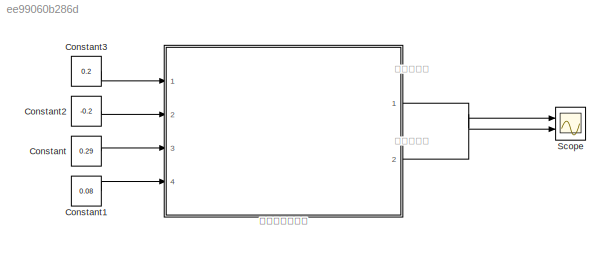
MODEL slx_ee99060b286d
KIND model
CONFIG AbsTol = auto
CONFIG EnableMultiTasking = off
CONFIG FixedStep = auto
CONFIG MaxStep = auto
CONFIG MinStep = auto
CONFIG RelTol = 1e-3
CONFIG SampleTimeConstraint = Unconstrained
CONFIG SolverName = VariableStepAuto
CONFIG StartTime = 0.0
CONFIG StopTime = 10.0
BLOCK [Constant] Constant
  Value = 0.29
BLOCK [Constant] Constant1
  Value = 0.08
BLOCK [Constant] Constant2
  Value = -0.2
BLOCK [Constant] Constant3
  Value = 0.2
BLOCK [Scope] Scope
  Floating = off
  NumInputPorts = 2
  Ports = [2]
  ScopeSpecificationString = Simulink.scopes.TimeScopeBlockCfg('CurrentConfiguration', extmgr.ConfigurationSet(extmgr.Configuration('Core','General UI',true),extmgr.Configuration('Core','Source UI',true),extmgr.Configuration('Sources','WiredSimulink',true,'DataLoggingVariableName','ScopeData1'),extmgr.Configuration('Visuals','Time Domain',true,'SerializedDisplays',{struct('MinYLimReal','1.59375','MaxYLimReal','3.40625','YLabe...<+1484ch>
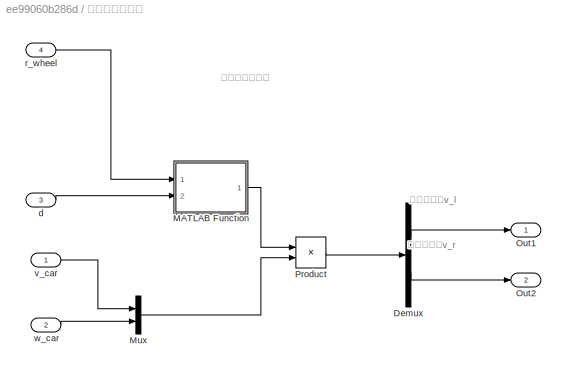
BLOCK [SubSystem] 差分轮运动模型
  Ports = [4, 2]
  RequestExecContextInheritance = off
BLOCK [Demux] 差分轮运动模型/Demux
  Outputs = 2
  Ports = [1, 2]
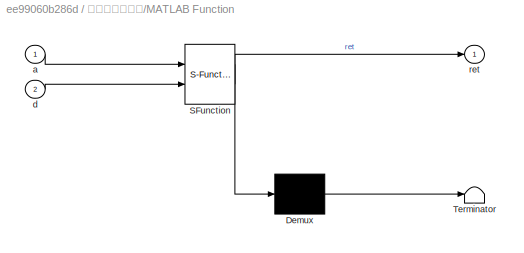
BLOCK [SubSystem] 差分轮运动模型/MATLAB Function
  ErrorFcn = Stateflow.Translate.translate
  PermitHierarchicalResolution = ExplicitOnly
  Ports = [2, 1]
  RequestExecContextInheritance = off
  SFBlockType = MATLAB Function
  TreatAsAtomicUnit = on
BLOCK [Demux] 差分轮运动模型/MATLAB Function/ Demux 
  Outputs = 1
  Ports = [1, 1]
BLOCK [S-Function] 差分轮运动模型/MATLAB Function/ SFunction 
  EnableBusSupport = on
  FunctionName = sf_sfun
  PortCounts = [2 2]
  Ports = [2, 2]
  SFcnIsStateOwnerBlock = off
  SFunctionDeploymentMode = off
  Tag = Stateflow S-Function 2
BLOCK [Terminator] 差分轮运动模型/MATLAB Function/ Terminator 
BLOCK [Inport] 差分轮运动模型/MATLAB Function/a
BLOCK [Inport] 差分轮运动模型/MATLAB Function/d
  Port = 2
BLOCK [Outport] 差分轮运动模型/MATLAB Function/ret
BLOCK [Mux] 差分轮运动模型/Mux
  DisplayOption = bar
  Inputs = 2
  Ports = [2, 1]
BLOCK [Outport] 差分轮运动模型/Out1
BLOCK [Outport] 差分轮运动模型/Out2
  Port = 2
BLOCK [Product] 差分轮运动模型/Product
  Multiplication = Matrix(*)
  Ports = [2, 1]
BLOCK [Inport] 差分轮运动模型/d
  Port = 3
BLOCK [Inport] 差分轮运动模型/r_wheel
  Port = 4
BLOCK [Inport] 差分轮运动模型/v_car
BLOCK [Inport] 差分轮运动模型/w_car
  Port = 2
ANNOTATION (root): 右轮线速度
ANNOTATION (root): 左轮线速度
ANNOTATION 差分轮运动模型: 右轮线速度v_r
ANNOTATION 差分轮运动模型: 左轮线速度v_l
ANNOTATION 差分轮运动模型: 差分轮运动模型
LINE Constant1:1 -> 差分轮运动模型:4
LINE Constant2:1 -> 差分轮运动模型:2
LINE Constant3:1 -> 差分轮运动模型:1
LINE Constant:1 -> 差分轮运动模型:3
LINE 差分轮运动模型/Demux:1 -> 差分轮运动模型/Out1:1
LINE 差分轮运动模型/Demux:2 -> 差分轮运动模型/Out2:1
LINE 差分轮运动模型/MATLAB Function:1 -> 差分轮运动模型/Product:1
LINE 差分轮运动模型/Mux:1 -> 差分轮运动模型/Product:2
LINE 差分轮运动模型/Product:1 -> 差分轮运动模型/Demux:1
LINE 差分轮运动模型/d:1 -> 差分轮运动模型/MATLAB Function:2
LINE 差分轮运动模型/r_wheel:1 -> 差分轮运动模型/MATLAB Function:1
LINE 差分轮运动模型/v_car:1 -> 差分轮运动模型/Mux:1
LINE 差分轮运动模型/w_car:1 -> 差分轮运动模型/Mux:2
LINE 差分轮运动模型:1 -> Scope:1
LINE 差分轮运动模型:2 -> Scope:2
CHART 差分轮运动模型/MATLAB Function states=1 transitions=1
  STATE_LABEL 'eML_blk_kernel()'
  STATE_LABEL 'SCRIPT:\nfunction ret = fcn(a,d)\n   ret=[1/a -d/a;\n       1/a  d/a]; \n'
CHART  states=0 transitions=0
